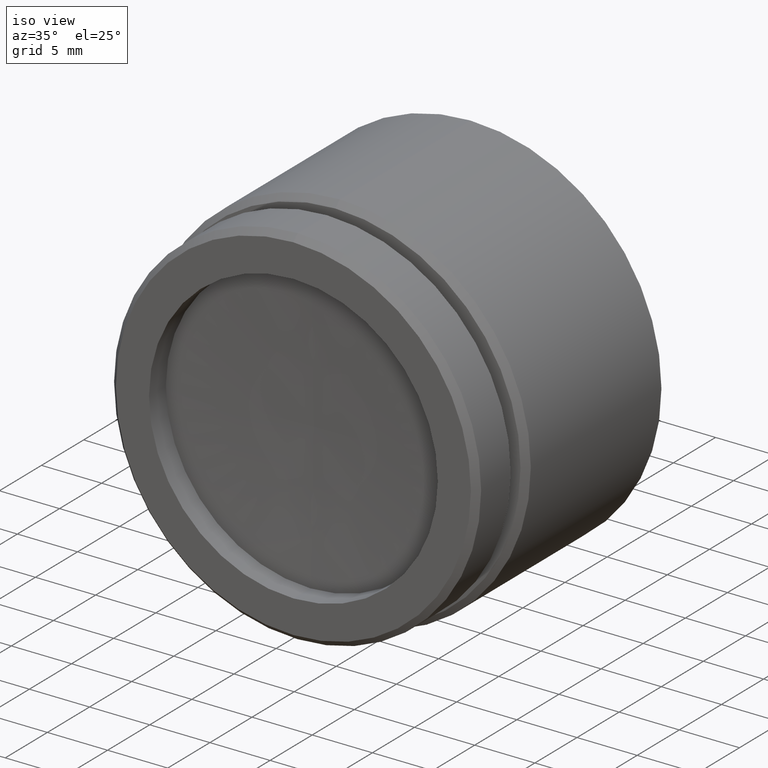
[diagram: clean part render]
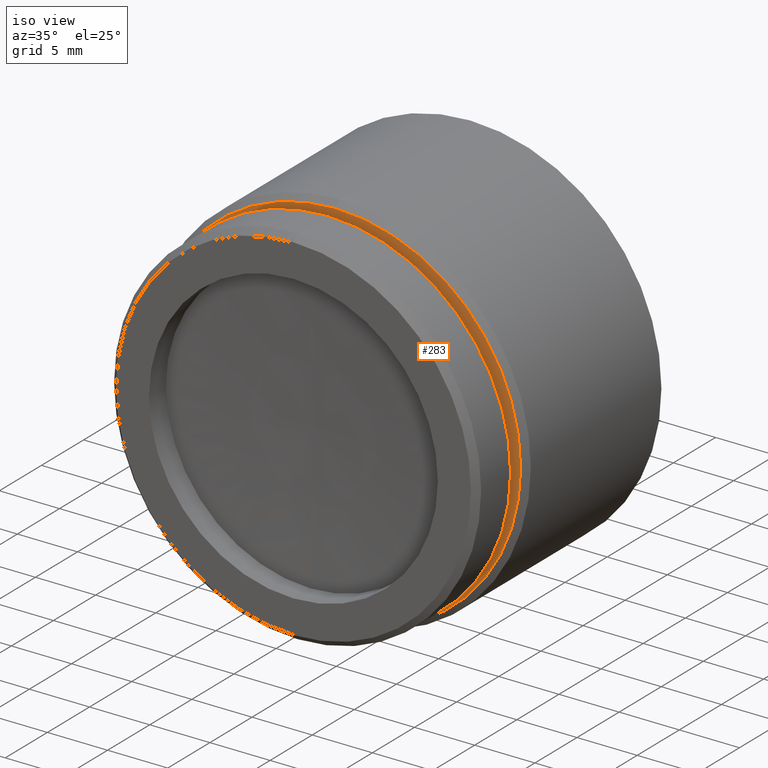
[diagram: same view with one face highlighted and labeled with its STEP entity id]
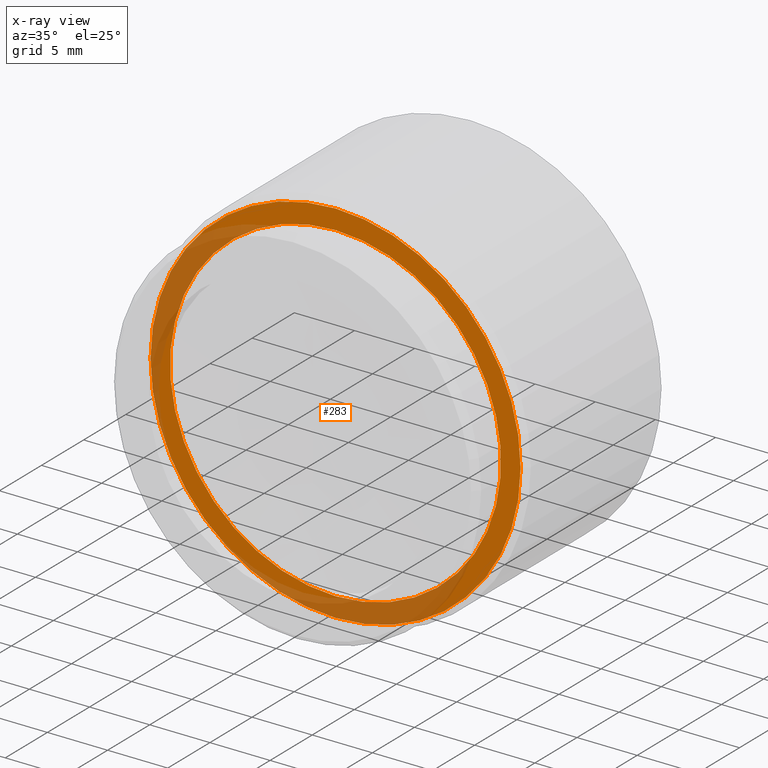
[diagram: x-ray of the same camera — body ghosted, the highlighted face saturated]
A machine part, iso view. The second image highlights one B-rep face of the part: STEP entity #283.
The next image is the same camera in x-ray: the body ghosted, the highlighted face saturated — about 32% of this face is hidden behind the body in this view.
In plain terms, the highlighted planar face has unit normal (0, -1, 0).
Its self-contained STEP definition (entity closure, byte-faithful):
#13 = EDGE_LOOP ( 'NONE', ( #1246, #856 ) ) ;
#58 = DIRECTION ( 'NONE',  ( 0.000000000000000000, 0.000000000000000000, -1.000000000000000000 ) ) ;
#62 = EDGE_CURVE ( 'NONE', #87, #696, #587, .T. ) ;
#87 = VERTEX_POINT ( 'NONE', #335 ) ;
#124 = CARTESIAN_POINT ( 'NONE',  ( -62.96855859389908971, 9.153165921879422129, 19.92647029529256386 ) ) ;
#126 = CARTESIAN_POINT ( 'NONE',  ( -62.96855859389908971, 9.153165921879422129, 19.92647029529256386 ) ) ;
#209 = DIRECTION ( 'NONE',  ( 0.000000000000000000, -1.000000000000000000, 0.000000000000000000 ) ) ;
#225 = ORIENTED_EDGE ( 'NONE', *, *, #586, .T. ) ;
#283 = ADVANCED_FACE ( 'NONE', ( #1330, #1327 ), #866, .T. ) ;
#311 = CARTESIAN_POINT ( 'NONE',  ( -62.96855859389908971, 9.153165921879422129, 19.92647029529256386 ) ) ;
#335 = CARTESIAN_POINT ( 'NONE',  ( -62.96855859389908971, 9.153165921879422129, 4.551470295292562973 ) ) ;
#439 = CIRCLE ( 'NONE', #1342, 13.75000000000000000 ) ;
#530 = DIRECTION ( 'NONE',  ( 0.000000000000000000, -1.000000000000000000, 0.000000000000000000 ) ) ;
#571 = CARTESIAN_POINT ( 'NONE',  ( -62.96855859389908971, 9.153165921879422129, 19.92647029529256386 ) ) ;
#586 = EDGE_CURVE ( 'NONE', #696, #87, #1463, .T. ) ;
#587 = CIRCLE ( 'NONE', #1446, 15.37500000000000000 ) ;
#628 = EDGE_CURVE ( 'NONE', #651, #769, #1260, .T. ) ;
#651 = VERTEX_POINT ( 'NONE', #921 ) ;
#696 = VERTEX_POINT ( 'NONE', #732 ) ;
#732 = CARTESIAN_POINT ( 'NONE',  ( -62.96855859389908971, 9.153165921879422129, 35.30147029529256031 ) ) ;
#735 = AXIS2_PLACEMENT_3D ( 'NONE', #311, #775, #1245 ) ;
#769 = VERTEX_POINT ( 'NONE', #982 ) ;
#775 = DIRECTION ( 'NONE',  ( 0.000000000000000000, -1.000000000000000000, 0.000000000000000000 ) ) ;
#776 = AXIS2_PLACEMENT_3D ( 'NONE', #858, #530, #58 ) ;
#797 = ORIENTED_EDGE ( 'NONE', *, *, #62, .T. ) ;
#799 = AXIS2_PLACEMENT_3D ( 'NONE', #124, #1050, #1411 ) ;
#856 = ORIENTED_EDGE ( 'NONE', *, *, #1017, .F. ) ;
#858 = CARTESIAN_POINT ( 'NONE',  ( -49.21855859389908971, 9.153165921879422129, 19.92647029529256386 ) ) ;
#866 = PLANE ( 'NONE',  #776 ) ;
#921 = CARTESIAN_POINT ( 'NONE',  ( -62.96855859389908971, 9.153165921879422129, 6.176470295292562973 ) ) ;
#982 = CARTESIAN_POINT ( 'NONE',  ( -62.96855859389908971, 9.153165921879422129, 33.67647029529256031 ) ) ;
#1017 = EDGE_CURVE ( 'NONE', #769, #651, #439, .T. ) ;
#1039 = DIRECTION ( 'NONE',  ( 0.000000000000000000, -1.000000000000000000, 0.000000000000000000 ) ) ;
#1050 = DIRECTION ( 'NONE',  ( 0.000000000000000000, -1.000000000000000000, 0.000000000000000000 ) ) ;
#1245 = DIRECTION ( 'NONE',  ( 0.000000000000000000, 0.000000000000000000, -1.000000000000000000 ) ) ;
#1246 = ORIENTED_EDGE ( 'NONE', *, *, #628, .F. ) ;
#1260 = CIRCLE ( 'NONE', #799, 13.75000000000000000 ) ;
#1327 = FACE_BOUND ( 'NONE', #13, .T. ) ;
#1330 = FACE_OUTER_BOUND ( 'NONE', #1481, .T. ) ;
#1342 = AXIS2_PLACEMENT_3D ( 'NONE', #571, #1039, #1370 ) ;
#1370 = DIRECTION ( 'NONE',  ( 0.000000000000000000, 0.000000000000000000, -1.000000000000000000 ) ) ;
#1411 = DIRECTION ( 'NONE',  ( 0.000000000000000000, 0.000000000000000000, -1.000000000000000000 ) ) ;
#1446 = AXIS2_PLACEMENT_3D ( 'NONE', #126, #209, #1507 ) ;
#1463 = CIRCLE ( 'NONE', #735, 15.37500000000000000 ) ;
#1481 = EDGE_LOOP ( 'NONE', ( #225, #797 ) ) ;
#1507 = DIRECTION ( 'NONE',  ( 0.000000000000000000, 0.000000000000000000, -1.000000000000000000 ) ) ;